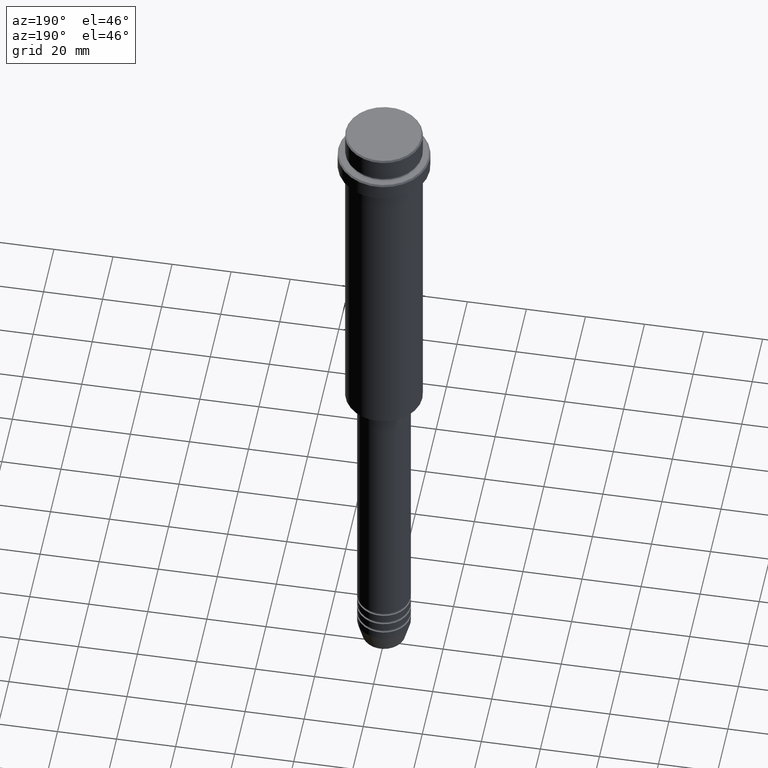
[diagram: clean part render]
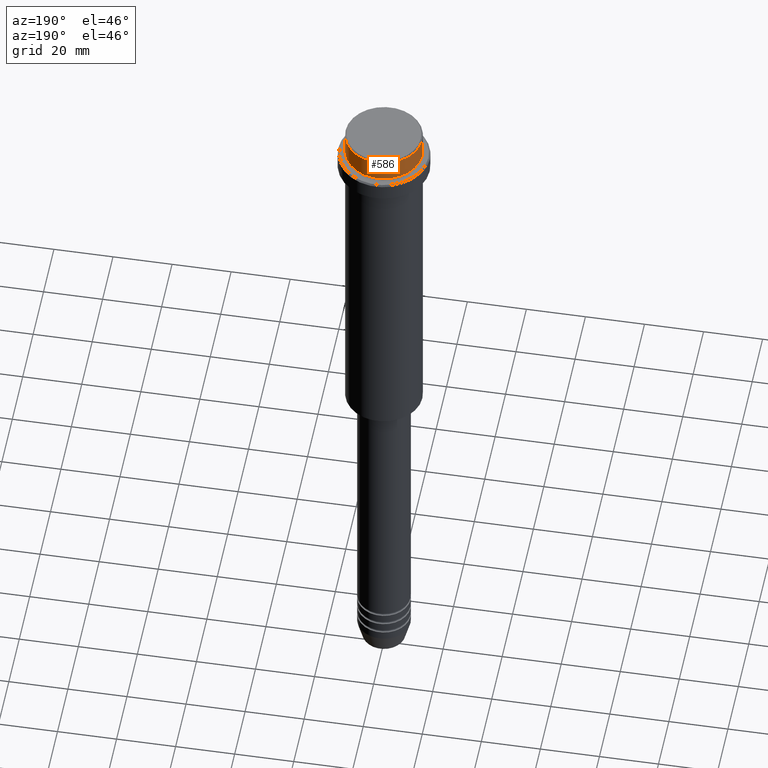
[diagram: same view with one face highlighted and labeled with its STEP entity id]
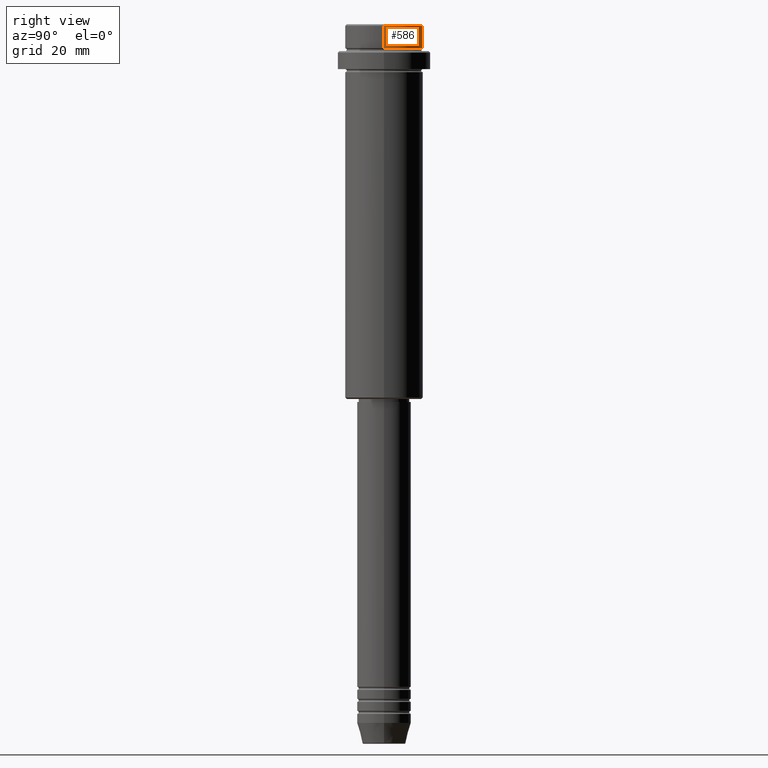
[diagram: same view with one face highlighted and labeled with its STEP entity id]
A machine part, auxiliary view. The second image highlights one B-rep face of the part: STEP entity #586.
A second angle (right view) of the same face is appended — the face is thin or edge-on in the first view.
In plain terms, the highlighted cylindrical surface (partial cylindrical patch) has radius 13 mm, axis along (-0, -0, 1).
Its self-contained STEP definition (entity closure, byte-faithful):
#3 = CARTESIAN_POINT ( 'NONE',  ( 12.99999999999999822, 0.000000000000000000, -0.5000000000000038858 ) ) ;
#4 = VERTEX_POINT ( 'NONE', #3 ) ;
#39 = ORIENTED_EDGE ( 'NONE', *, *, #1067, .T. ) ;
#82 = ORIENTED_EDGE ( 'NONE', *, *, #1141, .T. ) ;
#148 = LINE ( 'NONE', #1268, #615 ) ;
#165 = DIRECTION ( 'NONE',  ( 1.000000000000000000, 0.000000000000000000, 0.000000000000000000 ) ) ;
#211 = ORIENTED_EDGE ( 'NONE', *, *, #1327, .T. ) ;
#239 = DIRECTION ( 'NONE',  ( -0.000000000000000000, -0.000000000000000000, 1.000000000000000000 ) ) ;
#265 = CARTESIAN_POINT ( 'NONE',  ( 0.000000000000000000, 0.000000000000000000, -0.5000000000000038858 ) ) ;
#321 = VERTEX_POINT ( 'NONE', #361 ) ;
#324 = CIRCLE ( 'NONE', #631, 12.99999999999999822 ) ;
#332 = CYLINDRICAL_SURFACE ( 'NONE', #1281, 12.99999999999999822 ) ;
#352 = EDGE_CURVE ( 'NONE', #321, #4, #496, .T. ) ;
#361 = CARTESIAN_POINT ( 'NONE',  ( 12.99999999999999822, 0.000000000000000000, -7.999999999999998224 ) ) ;
#438 = DIRECTION ( 'NONE',  ( -0.000000000000000000, -0.000000000000000000, 1.000000000000000000 ) ) ;
#464 = DIRECTION ( 'NONE',  ( 1.000000000000000000, 0.000000000000000000, 0.000000000000000000 ) ) ;
#496 = LINE ( 'NONE', #815, #737 ) ;
#572 = CARTESIAN_POINT ( 'NONE',  ( 0.000000000000000000, 0.000000000000000000, -7.999999999999998224 ) ) ;
#586 = ADVANCED_FACE ( 'NONE', ( #1194 ), #332, .T. ) ;
#613 = VERTEX_POINT ( 'NONE', #652 ) ;
#615 = VECTOR ( 'NONE', #1346, 1000.000000000000000 ) ;
#631 = AXIS2_PLACEMENT_3D ( 'NONE', #572, #239, #464 ) ;
#652 = CARTESIAN_POINT ( 'NONE',  ( -12.99999999999999822, 1.592040838891558898E-15, -0.5000000000000038858 ) ) ;
#737 = VECTOR ( 'NONE', #1127, 1000.000000000000000 ) ;
#815 = CARTESIAN_POINT ( 'NONE',  ( 12.99999999999999822, 0.000000000000000000, 0.000000000000000000 ) ) ;
#823 = CIRCLE ( 'NONE', #1053, 12.99999999999999822 ) ;
#937 = EDGE_LOOP ( 'NONE', ( #211, #39, #82, #1027 ) ) ;
#993 = CARTESIAN_POINT ( 'NONE',  ( 0.000000000000000000, 0.000000000000000000, 0.000000000000000000 ) ) ;
#1027 = ORIENTED_EDGE ( 'NONE', *, *, #352, .F. ) ;
#1045 = DIRECTION ( 'NONE',  ( 0.000000000000000000, 0.000000000000000000, -1.000000000000000000 ) ) ;
#1053 = AXIS2_PLACEMENT_3D ( 'NONE', #265, #1045, #165 ) ;
#1067 = EDGE_CURVE ( 'NONE', #1126, #613, #148, .T. ) ;
#1126 = VERTEX_POINT ( 'NONE', #1242 ) ;
#1127 = DIRECTION ( 'NONE',  ( -0.000000000000000000, -0.000000000000000000, 1.000000000000000000 ) ) ;
#1141 = EDGE_CURVE ( 'NONE', #613, #4, #823, .T. ) ;
#1194 = FACE_OUTER_BOUND ( 'NONE', #937, .T. ) ;
#1242 = CARTESIAN_POINT ( 'NONE',  ( -12.99999999999999822, 1.592040838891558898E-15, -7.999999999999998224 ) ) ;
#1268 = CARTESIAN_POINT ( 'NONE',  ( -12.99999999999999822, 1.592040838891558898E-15, 0.000000000000000000 ) ) ;
#1281 = AXIS2_PLACEMENT_3D ( 'NONE', #993, #438, #1306 ) ;
#1306 = DIRECTION ( 'NONE',  ( 1.000000000000000000, 0.000000000000000000, 0.000000000000000000 ) ) ;
#1327 = EDGE_CURVE ( 'NONE', #321, #1126, #324, .T. ) ;
#1346 = DIRECTION ( 'NONE',  ( -0.000000000000000000, -0.000000000000000000, 1.000000000000000000 ) ) ;